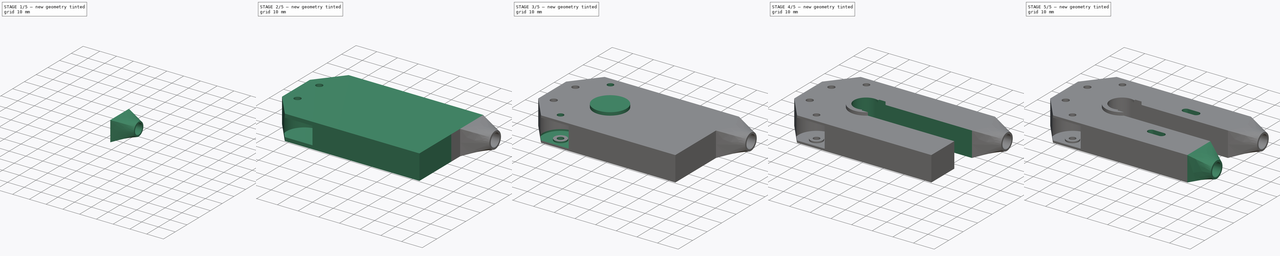
[diagram: build sequence overview — one tinted view per stage of 5, left to right]
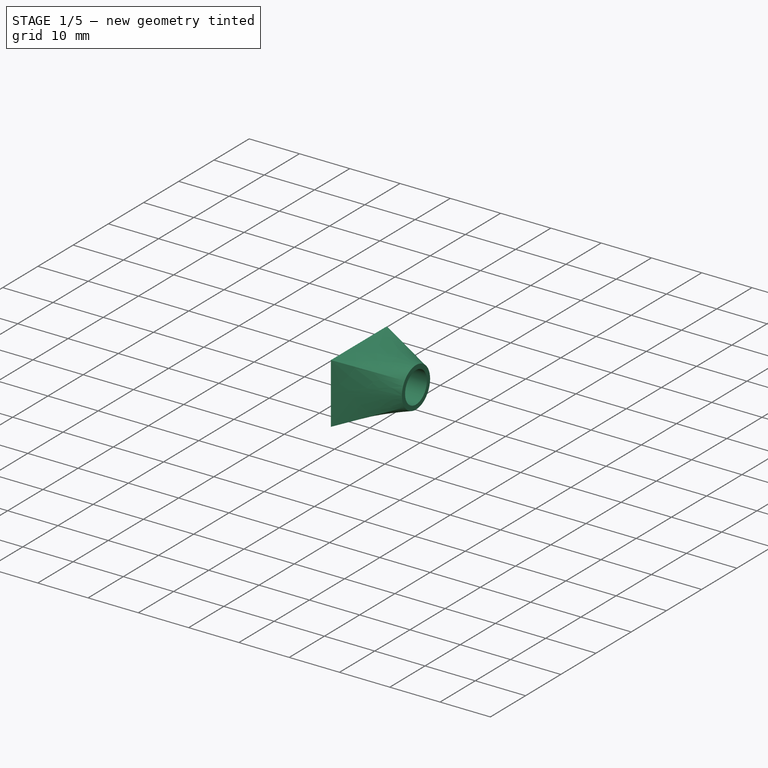
[diagram: stage 1 of 5 — iso view after this stage's code; geometry added in this stage tinted green]
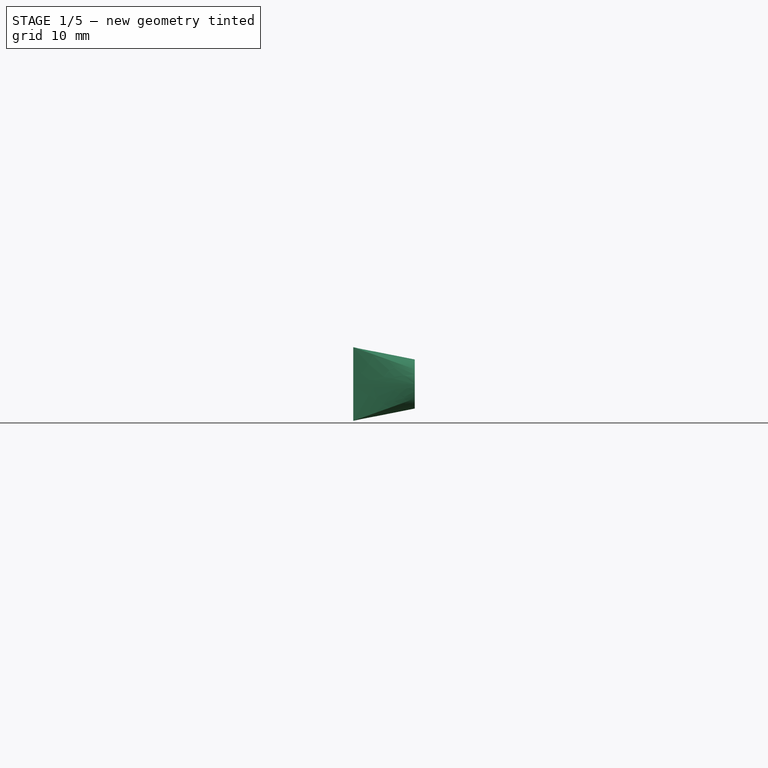
[diagram: stage 1 of 5 — front view after this stage's code; geometry added in this stage tinted green]
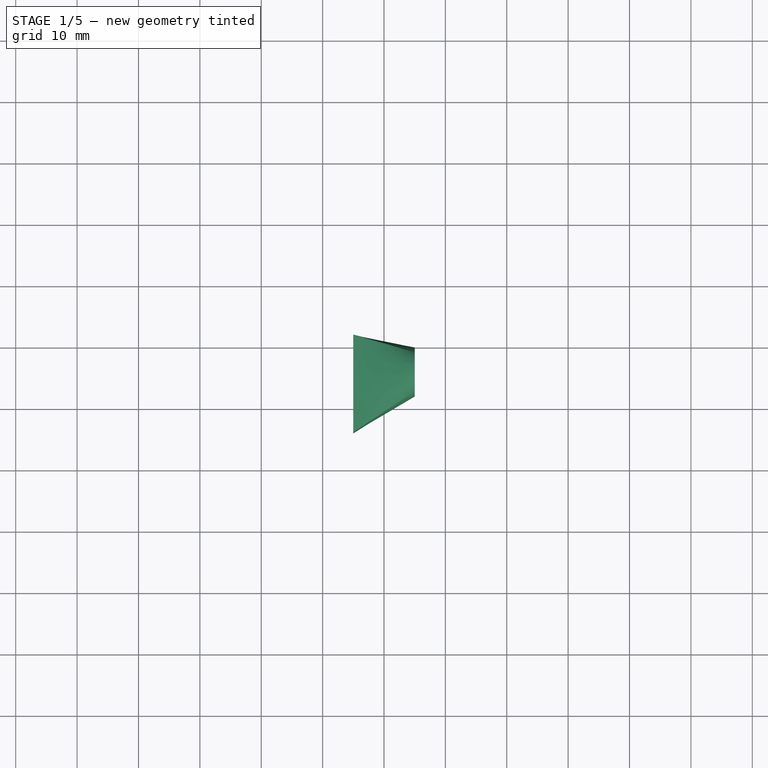
[diagram: stage 1 of 5 — top view after this stage's code; geometry added in this stage tinted green]
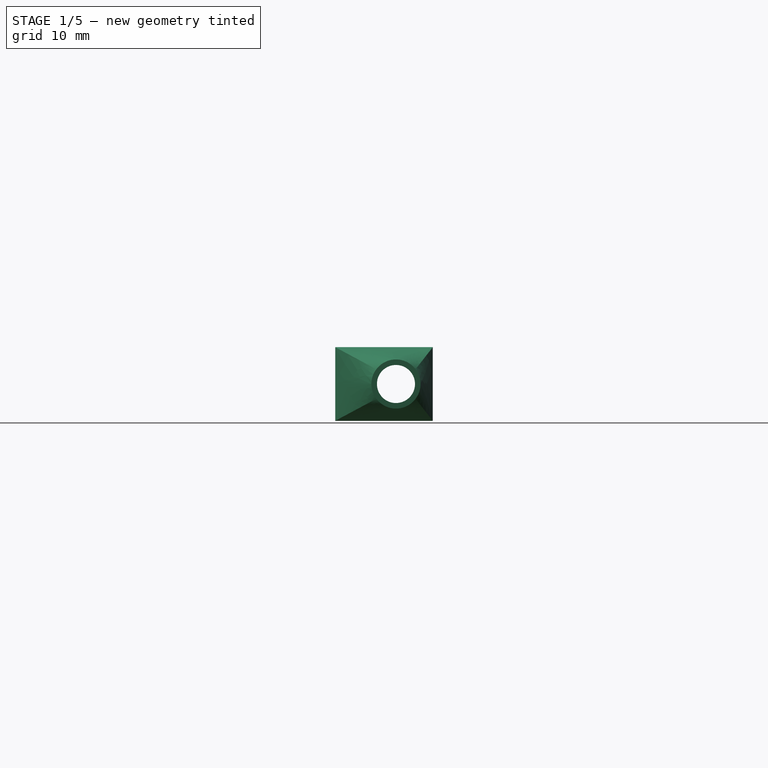
[diagram: stage 1 of 5 — right view after this stage's code; geometry added in this stage tinted green]
FCSTD DOCUMENT  (FreeCAD 0.18R14090 (Git))
Label: RightXEnd
License: All rights reserved
LicenseURL: http://en.wikipedia.org/wiki/All_rights_reserved
objects: Sketcher::SketchObject×15, PartDesign::Pocket×11, PartDesign::Body×3, PartDesign::Pad×2, PartDesign::Plane×2, PartDesign::FeatureBase×2, PartDesign::AdditiveLoft×1, Part::Mirroring×1, App::Part×1, Part::MultiFuse×1, Part::FeaturePython×1
note: 53 computed .brp shape members not serialized (recipe doc carries the construction recipe); baked Part::Feature solids carry a one-line shape summary decoded from their .brp

FEATURE [Sketcher::SketchObject] Sketch004  label="BearingClipBaseSketch"
  MapMode = 5
  Support = -> [XY_Plane]
  sketch-geometry (1):
    g0: Circle CenterX=28 CenterY=0 CenterZ=0 NormalX=0 NormalY=0 NormalZ=1 AngleXU=0 Radius=8
  constraints (3):
    c: PointOnObject(g0,g-1)
    c: Distance(g-1,g0) = 28
    c: Radius(g0) = 8
FEATURE [Sketcher::SketchObject] Sketch005  label="BearingClipLedgeSketch"
  ExternalGeometry = -> [Sketch004]
  MapMode = 5
  Support = -> [XY_Plane]
  sketch-geometry (1):
    g0: Circle CenterX=28 CenterY=0 CenterZ=0 NormalX=0 NormalY=0 NormalZ=1 AngleXU=0 Radius=5.8
  constraints (2):
    c: Coincident(g0,g-3)
    c: Radius(g0) = 5.8
FEATURE [Sketcher::SketchObject] Sketch006  label="BearingClipWallSketch"
  ExternalGeometry = -> [Sketch004]
  MapMode = 5
  Support = -> [XY_Plane]
  sketch-geometry (1):
    g0: Circle CenterX=28 CenterY=0 CenterZ=0 NormalX=0 NormalY=0 NormalZ=1 AngleXU=0 Radius=6.1
  constraints (2):
    c: Coincident(g0,g-3)
    c: Radius(g0) = 6.1
FEATURE [Sketcher::SketchObject] Sketch007  label="BearingClipCut1Sketch"
  ExternalGeometry = -> [Sketch006]
  MapMode = 5
  Support = -> [XY_Plane]
  sketch-geometry (10):
    g0: LineSegment StartX=28 StartY=0 StartZ=0 EndX=30.0863 EndY=5.73212 EndZ=0
    g1: LineSegment StartX=28 StartY=0 StartZ=0 EndX=30.0863 EndY=-5.73212 EndZ=0
    g2: LineSegment StartX=30.2202 StartY=-6.1 StartZ=0 EndX=130.22 EndY=-6.1 EndZ=0
    g3: LineSegment StartX=30.2202 StartY=6.1 StartZ=0 EndX=130.22 EndY=6.1 EndZ=0
    g4: LineSegment StartX=130.22 StartY=6.1 StartZ=0 EndX=130.22 EndY=-6.1 EndZ=0
    g5: LineSegment [constr] StartX=28 StartY=6.1 StartZ=0 EndX=28 EndY=-6.1 EndZ=0
    g6: LineSegment [constr] StartX=28 StartY=6.1 StartZ=0 EndX=30.2202 EndY=6.1 EndZ=0
    g7: LineSegment [constr] StartX=28 StartY=-6.1 StartZ=0 EndX=30.2202 EndY=-6.1 EndZ=0
    g8: LineSegment StartX=30.0863 StartY=5.73212 StartZ=0 EndX=30.2202 EndY=6.1 EndZ=0
    g9: LineSegment StartX=30.0863 StartY=-5.73212 StartZ=0 EndX=30.2202 EndY=-6.1 EndZ=0
  constraints (26):
    c: Coincident(g1,g0)
    c: Horizontal(g2)
    c: Horizontal(g3)
    c: Coincident(g4,g3)
    c: Coincident(g4,g2)
    c: Vertical(g4)
    c: Distance(g3) = 100
    c: PointOnObject(g0,g-3)
    c: Coincident(g0,g-3)
    c: Symmetric(g1,g0,g-1)
    c: Angle(g0,g-1) = 1.91986
    c: PointOnObject(g5,g-3)
    c: PointOnObject(g5,g-3)
    c: Vertical(g5)
    c: PointOnObject(g0,g5)
    c: Coincident(g6,g5)
    c: Horizontal(g6)
    c: Coincident(g7,g5)
    c: Symmetric(g7,g6,g-1)
    c: Coincident(g8,g0)
    c: Coincident(g8,g6)
    c: Coincident(g9,g1)
    c: Coincident(g9,g7)
    c: Parallel(g8,g0)
    c: Coincident(g3,g8)
    c: Coincident(g2,g9)
FEATURE [Sketcher::SketchObject] Sketch008  label="BearingClipCut2Sketch"
  ExternalGeometry = -> [Sketch006]
  MapMode = 5
  Support = -> [XY_Plane]
  sketch-geometry (4):
    g0: LineSegment StartX=28 StartY=6.1 StartZ=0 EndX=28 EndY=-6.1 EndZ=0
    g1: LineSegment StartX=28 StartY=6.1 StartZ=0 EndX=32 EndY=6.1 EndZ=0
    g2: LineSegment StartX=32 StartY=6.1 StartZ=0 EndX=32 EndY=-6.1 EndZ=0
    g3: LineSegment StartX=32 StartY=-6.1 StartZ=0 EndX=28 EndY=-6.1 EndZ=0
  constraints (12):
    c: PointOnObject(g0,g-3)
    c: PointOnObject(g0,g-3)
    c: Vertical(g0)
    c: PointOnObject(g-3,g0)
    c: Coincident(g1,g0)
    c: Horizontal(g1)
    c: Vertical(g2)
    c: Coincident(g3,g2)
    c: Coincident(g3,g0)
    c: Horizontal(g3)
    c: Distance(g1) = 4
    c: Coincident(g2,g1)
FEATURE [Sketcher::SketchObject] Sketch012  label="FeedingShaftClipScrewsSketch"
  ExternalGeometry = -> [Sketch004]
  MapMode = 5
  Support = -> [XY_Plane]
  sketch-geometry (13):
    g0: LineSegment [constr] StartX=28 StartY=8 StartZ=0 EndX=28 EndY=-8 EndZ=0
    g1: LineSegment [constr] StartX=28 StartY=12 StartZ=0 EndX=53 EndY=12 EndZ=0
    g2: LineSegment [constr] StartX=28 StartY=12 StartZ=0 EndX=28 EndY=8 EndZ=0
    g3: ArcOfCircle CenterX=50.5 CenterY=12 CenterZ=0 NormalX=0 NormalY=0 NormalZ=1 AngleXU=0 Radius=1.65 StartAngle=1.5708 EndAngle=4.71239
    g4: ArcOfCircle CenterX=55.5 CenterY=12 CenterZ=0 NormalX=0 NormalY=0 NormalZ=1 AngleXU=0 Radius=1.65 StartAngle=4.71239 EndAngle=7.85398
    g5: LineSegment StartX=50.5 StartY=10.35 StartZ=0 EndX=55.5 EndY=10.35 EndZ=0
    g6: LineSegment StartX=50.5 StartY=13.65 StartZ=0 EndX=55.5 EndY=13.65 EndZ=0
    g7: LineSegment [constr] StartX=50.5 StartY=12 StartZ=0 EndX=53 EndY=12 EndZ=0
    g8: LineSegment [constr] StartX=53 StartY=12 StartZ=0 EndX=55.5 EndY=12 EndZ=0
    g9: ArcOfCircle CenterX=50.5 CenterY=-12 CenterZ=0 NormalX=0 NormalY=0 NormalZ=1 AngleXU=0 Radius=1.65 StartAngle=1.5708 EndAngle=4.71239
    g10: ArcOfCircle CenterX=55.5 CenterY=-12 CenterZ=0 NormalX=0 NormalY=0 NormalZ=1 AngleXU=0 Radius=1.65 StartAngle=4.71239 EndAngle=7.85398
    g11: LineSegment StartX=50.5 StartY=-13.65 StartZ=0 EndX=55.5 EndY=-13.65 EndZ=0
    g12: LineSegment StartX=50.5 StartY=-10.35 StartZ=0 EndX=55.5 EndY=-10.35 EndZ=0
  constraints (32):
    c: PointOnObject(g0,g-3)
    c: Vertical(g0)
    c: PointOnObject(g-3,g0)
    c: Horizontal(g1)
    c: Distance(g1) = 25
    c: PointOnObject(g0,g-3)
    c: Coincident(g2,g1)
    c: Coincident(g2,g0)
    c: Vertical(g2)
    c: Tangent(g3,g6) = 1.5708
    c: Tangent(g3,g5) = -1.5708
    c: Tangent(g5,g4) = -1.5708
    c: Tangent(g6,g4) = 1.5708
    c: Horizontal(g5)
    c: Equal(g3,g4)
    c: PointOnObject(g3,g1)
    c: Coincident(g7,g3)
    c: Coincident(g7,g1)
    c: Coincident(g8,g1)
    c: Coincident(g8,g4)
    c: Equal(g7,g8)
    c: Distance(g6) = 5
    c: Radius(g4) = 1.65
    c: Tangent(g9,g12) = 1.5708
    c: Tangent(g9,g11) = -1.5708
    c: Tangent(g11,g10) = -1.5708
    c: Tangent(g12,g10) = 1.5708
    c: Horizontal(g11)
    c: Symmetric(g9,g3,g-1)
    c: Symmetric(g4,g10,g-1)
    c: Equal(g10,g4)
    c: Distance(g1,g-3) = 12
FEATURE [Sketcher::SketchObject] Sketch013  label="ClipBaseSketch"
  MapMode = 5
  Placement = pos=(0,0,0) rot=(0.57735,0.57735,0.57735;2.0944rad)
  Support = -> [YZ_Plane001]
  sketch-geometry (4):
    g0: LineSegment StartX=0 StartY=0 StartZ=0 EndX=15.9 EndY=0 EndZ=0
    g1: LineSegment StartX=15.9 StartY=0 StartZ=0 EndX=15.9 EndY=12 EndZ=0
    g2: LineSegment StartX=15.9 StartY=12 StartZ=0 EndX=0 EndY=12 EndZ=0
    g3: LineSegment StartX=0 StartY=12 StartZ=0 EndX=0 EndY=0 EndZ=0
  constraints (11):
    c: Coincident(g0,g1)
    c: Coincident(g1,g2)
    c: Coincident(g2,g3)
    c: Coincident(g3,g0)
    c: Horizontal(g0)
    c: Horizontal(g2)
    c: Vertical(g1)
    c: Vertical(g3)
    c: Coincident(g0,g-1)
    c: Distance(g3) = 12
    c: Distance(g2) = 15.9
FEATURE [PartDesign::Plane] DatumPlane  label="ClipTopPlane"
  AttachmentOffset = pos=(0,0,10) rot=(0,0,1;0rad)
  MapMode = 2
  Placement = pos=(10,-1e-12,1e-12) rot=(0.57735,0.57735,0.57735;2.0944rad)
  Support = -> [YZ_Plane001]
FEATURE [Sketcher::SketchObject] Sketch014  label="ClipTopSketch"
  ExternalGeometry = -> [Sketch013]
  MapMode = 5
  Placement = pos=(10,-1e-12,1e-12) rot=(0.57735,0.57735,0.57735;2.0944rad)
  Support = -> [DatumPlane]
  sketch-geometry (4):
    g0: Circle CenterX=6 CenterY=6 CenterZ=0 NormalX=0 NormalY=0 NormalZ=1 AngleXU=0 Radius=4
    g1: LineSegment [constr] StartX=6 StartY=6 StartZ=0 EndX=6 EndY=12 EndZ=0
    g2: LineSegment [constr] StartX=6 StartY=6 StartZ=0 EndX=0 EndY=6 EndZ=0
    g3: LineSegment [constr] StartX=6 StartY=6 StartZ=0 EndX=6 EndY=0 EndZ=0
  constraints (12):
    c: Radius(g0) = 4
    c: Coincident(g1,g0)
    c: Vertical(g1)
    c: Coincident(g2,g0)
    c: Horizontal(g2)
    c: PointOnObject(g2,g-2)
    c: PointOnObject(g1,g-3)
    c: Coincident(g3,g0)
    c: PointOnObject(g3,g-1)
    c: Vertical(g3)
    c: Equal(g1,g3)
    c: Distance(g2) = 6
FEATURE [PartDesign::AdditiveLoft] AdditiveLoft
  Closed = false
  Placement = pos=(0,0,0) rot=(0.57735,0.57735,0.57735;2.0944rad)
  Profile = -> Sketch013
  Ruled = false
  Sections = -> [Sketch014]
FEATURE [Sketcher::SketchObject] Sketch015  label="ClipRodSketch"
  ExternalGeometry = -> [Sketch014]
  MapMode = 5
  Placement = pos=(10,-1e-12,1e-12) rot=(0.57735,0.57735,0.57735;2.0944rad)
  Support = -> [DatumPlane]
  sketch-geometry (1):
    g0: Circle CenterX=6 CenterY=6 CenterZ=0 NormalX=0 NormalY=0 NormalZ=1 AngleXU=0 Radius=3.1
  constraints (2):
    c: Coincident(g0,g-3)
    c: Radius(g0) = 3.1
FEATURE [PartDesign::Pocket] Pocket010  label="ClipRodPocket"
  BaseFeature = -> AdditiveLoft
  Length = 5
  Length2 = 100
  Placement = pos=(0,0,0) rot=(0.57735,0.57735,0.57735;2.0944rad)
  Profile = -> Sketch015
  Type = 1
FEATURE [PartDesign::Body] Body  label="RightXEndBase"
  Group = -> [Sketch,Pad,Sketch016,Pocket,Sketch009,Pocket006,Sketch011,Pocket008,Sketch010,Pocket007,Sketch004,Pad002,Sketch005,Pocket002,Sketch006,Pocket003,Sketch007,Pocket004,Sketch008,Pocket005,Sketch012,Pocket009,DatumPlane001,Sketch017,Pocket011]
  Origin = -> Origin
  Tip = -> Pocket011
FEATURE [PartDesign::FeatureBase] Clone  label="Clip_Rod6mm_Clone"
  BaseFeature = -> Body001
  Placement = pos=(75,-22,-6) rot=(0,0,1;0rad)
FEATURE [Part::Mirroring] Part__Mirroring  label="Clip_Rod6mm_Mirror"
  Base = (0,0,0)
  Normal = (0,1,0)
  Source = -> Clone
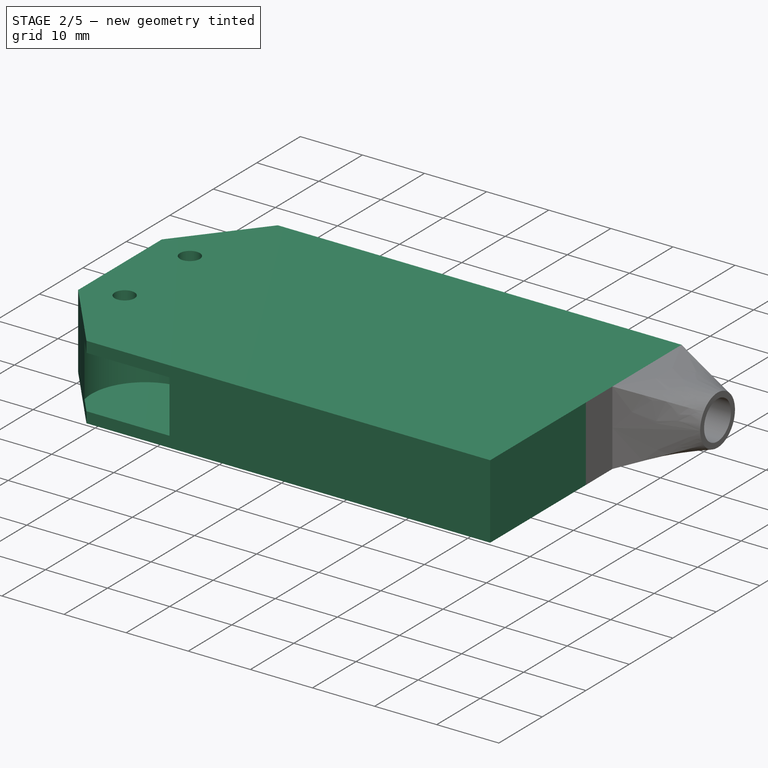
[diagram: stage 2 of 5 — iso view after this stage's code; geometry added in this stage tinted green]
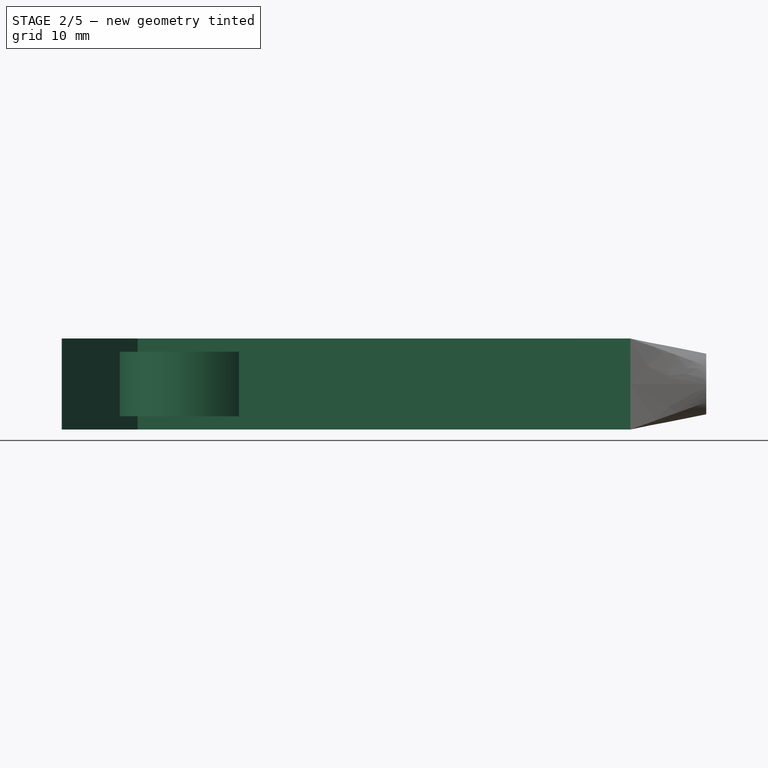
[diagram: stage 2 of 5 — front view after this stage's code; geometry added in this stage tinted green]
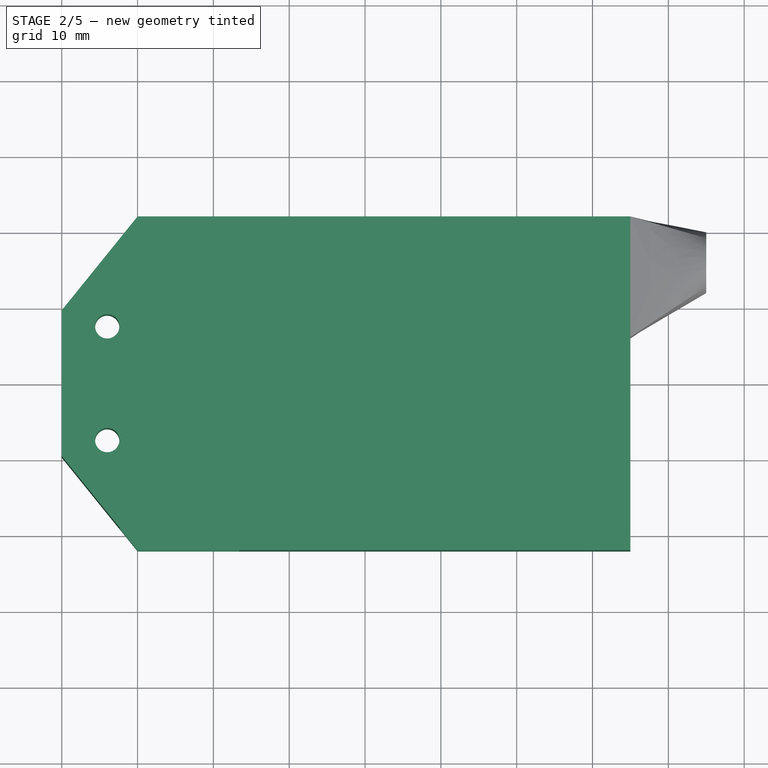
[diagram: stage 2 of 5 — top view after this stage's code; geometry added in this stage tinted green]
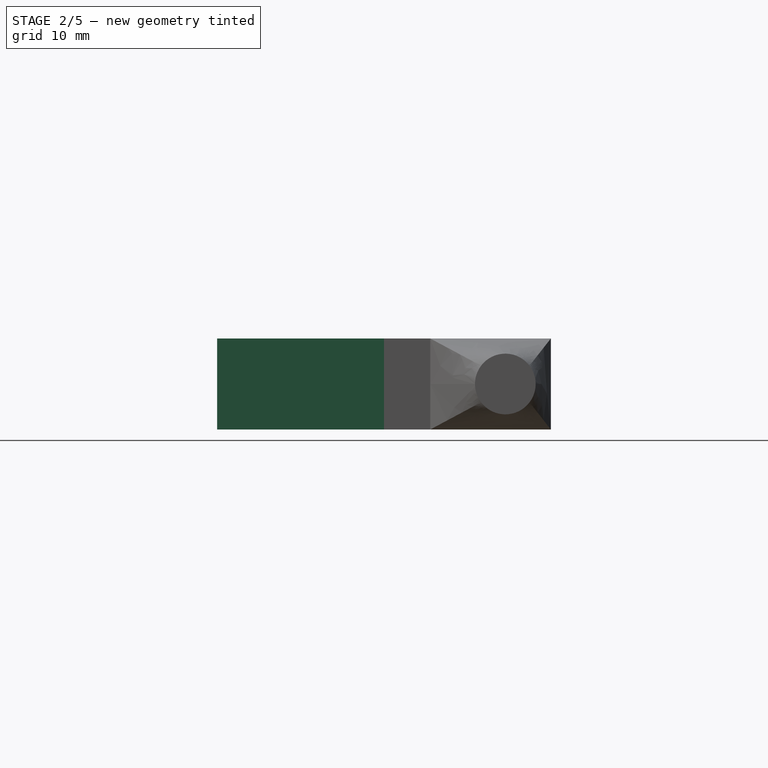
[diagram: stage 2 of 5 — right view after this stage's code; geometry added in this stage tinted green]
FEATURE [Sketcher::SketchObject] Sketch  label="BaseSketch"
  MapMode = 5
  Placement = pos=(0,0,0) rot=(0.57735,0.57735,0.57735;2.0944rad)
  Support = -> [YZ_Plane]
  sketch-geometry (8):
    g0: LineSegment StartX=0 StartY=-6 StartZ=0 EndX=22 EndY=-6 EndZ=0
    g1: LineSegment StartX=22 StartY=-6 StartZ=0 EndX=22 EndY=0 EndZ=0
    g2: LineSegment StartX=22 StartY=0 StartZ=0 EndX=22 EndY=6 EndZ=0
    g3: LineSegment StartX=22 StartY=6 StartZ=0 EndX=0 EndY=6 EndZ=0
    g4: LineSegment StartX=0 StartY=6 StartZ=0 EndX=-22 EndY=6 EndZ=0
    g5: LineSegment StartX=-22 StartY=6 StartZ=0 EndX=-22 EndY=0 EndZ=0
    g6: LineSegment StartX=-22 StartY=0 StartZ=0 EndX=-22 EndY=-6 EndZ=0
    g7: LineSegment StartX=-22 StartY=-6 StartZ=0 EndX=0 EndY=-6 EndZ=0
  constraints (24):
    c: PointOnObject(g3,g-2)
    c: PointOnObject(g0,g-2)
    c: Horizontal(g0)
    c: Coincident(g1,g0)
    c: PointOnObject(g1,g-1)
    c: Vertical(g1)
    c: Coincident(g2,g1)
    c: Vertical(g2)
    c: Coincident(g3,g2)
    c: Horizontal(g3)
    c: Horizontal(g4)
    c: Coincident(g5,g4)
    c: PointOnObject(g5,g-1)
    c: Vertical(g5)
    c: Coincident(g6,g5)
    c: Vertical(g6)
    c: Coincident(g7,g6)
    c: Horizontal(g7)
    c: Equal(g5,g6)
    c: Equal(g4,g3)
    c: Distance(g4,g6) = 12
    c: Distance(g4,g2) = 44
    c: Coincident(g0,g7)
    c: Coincident(g4,g3)
FEATURE [PartDesign::Pad] Pad  label="BasePad"
  Length = 75
  Length2 = 100
  Placement = pos=(0,0,0) rot=(0.57735,0.57735,0.57735;2.0944rad)
  Profile = -> Sketch
  Type = 0
FEATURE [PartDesign::Body] Body001  label="Clip_Rod6mm_Left"
  Group = -> [Sketch013,DatumPlane,Sketch014,AdditiveLoft,Sketch015,Pocket010]
  Origin = -> Origin001
  Placement = pos=(75,-22,-6) rot=(0,0,1;0rad)
  Tip = -> Pocket010
FEATURE [Sketcher::SketchObject] Sketch016  label="TensionerScrewsSketch"
  ExternalGeometry = -> [Sketch]
  MapMode = 5
  Support = -> [XY_Plane]
  sketch-geometry (10):
    g0: Circle CenterX=6 CenterY=7.5 CenterZ=0 NormalX=0 NormalY=0 NormalZ=1 AngleXU=0 Radius=1.6
    g1: Circle CenterX=6 CenterY=-7.5 CenterZ=0 NormalX=0 NormalY=0 NormalZ=1 AngleXU=0 Radius=1.6
    g2: LineSegment StartX=-2e-12 StartY=-22 StartZ=0 EndX=0 EndY=-9.62066 EndZ=0
    g3: LineSegment StartX=0 StartY=-9.62066 StartZ=0 EndX=10 EndY=-22 EndZ=0
    g4: LineSegment StartX=10 StartY=-22 StartZ=0 EndX=-2e-12 EndY=-22 EndZ=0
    g5: LineSegment StartX=0 StartY=9.62066 StartZ=0 EndX=-2e-12 EndY=22 EndZ=0
    g6: LineSegment StartX=-2e-12 StartY=22 StartZ=0 EndX=10 EndY=22 EndZ=0
    g7: LineSegment StartX=10 StartY=22 StartZ=0 EndX=0 EndY=9.62066 EndZ=0
    g8: LineSegment [constr] StartX=1.33259 StartY=-11.2703 StartZ=0 EndX=6 EndY=-7.5 EndZ=0
    g9: LineSegment [constr] StartX=6 StartY=-7.5 StartZ=0 EndX=0 EndY=-7.5 EndZ=0
  constraints (25):
    c: Symmetric(g0,g1,g-1)
    c: Equal(g0,g1)
    c: Radius(g0) = 1.6
    c: Coincident(g3,g2)
    c: Coincident(g4,g3)
    c: Coincident(g4,g2)
    c: Horizontal(g4)
    c: Coincident(g6,g5)
    c: Coincident(g7,g6)
    c: Coincident(g7,g5)
    c: Symmetric(g2,g5,g-1)
    c: Symmetric(g2,g5,g-1)
    c: Symmetric(g6,g3,g-1)
    c: PointOnObject(g8,g3)
    c: Coincident(g8,g1)
    c: Perpendicular(g3,g8)
    c: Coincident(g2,g-3)
    c: PointOnObject(g2,g-2)
    c: Distance(g1,g0) = 15
    c: Coincident(g9,g1)
    c: PointOnObject(g9,g-2)
    c: Horizontal(g9)
    c: Equal(g9,g8)
    c: Distance(g9) = 6
    c: Distance(g4) = 10
FEATURE [Sketcher::SketchObject] Sketch009  label="BeltBearingsSketch"
  ExternalGeometry = -> [Sketch,Sketch016]
  MapMode = 5
  Support = -> [XY_Plane]
  sketch-geometry (8):
    g0: LineSegment [constr] StartX=-3e-12 StartY=-22 StartZ=0 EndX=10 EndY=-22 EndZ=0
    g1: Circle [constr] CenterX=16.1237 CenterY=-17.25 CenterZ=0 NormalX=0 NormalY=0 NormalZ=1 AngleXU=0 Radius=7.75
    g2: LineSegment [constr] StartX=10 StartY=-22 StartZ=0 EndX=22.2474 EndY=-22 EndZ=0
    g3: LineSegment [constr] StartX=16.1237 StartY=-17.25 StartZ=0 EndX=16.1237 EndY=-25 EndZ=0
    g4: Circle CenterX=16.1237 CenterY=-17.25 CenterZ=0 NormalX=0 NormalY=0 NormalZ=1 AngleXU=0 Radius=8.67306
    g5: LineSegment [constr] StartX=22.2474 StartY=-22 StartZ=0 EndX=23.3804 EndY=-22 EndZ=0
    g6: LineSegment [constr] StartX=16.1237 StartY=-17.25 StartZ=0 EndX=7.64764 EndY=-19.0879 EndZ=0
    g7: Circle CenterX=16.1237 CenterY=17.25 CenterZ=0 NormalX=0 NormalY=0 NormalZ=1 AngleXU=0 Radius=8.67306
  constraints (22):
    c: Coincident(g0,g-3)
    c: Horizontal(g0)
    c: PointOnObject(g0,g1)
    c: Coincident(g2,g0)
    c: Horizontal(g2)
    c: PointOnObject(g2,g1)
    c: Coincident(g3,g1)
    c: PointOnObject(g3,g1)
    c: Vertical(g3)
    c: Distance(g3,g2) = 3
    c: Radius(g1) = 7.75
    c: Coincident(g4,g1)
    c: Coincident(g5,g2)
    c: Horizontal(g5)
    c: Coincident(g6,g4)
    c: PointOnObject(g6,g4)
    c: PointOnObject(g5,g4)
    c: Distance(g6,g5) = 16
    c: Symmetric(g4,g7,g-1)
    c: Equal(g7,g4)
    c: PointOnObject(g0,g-4)
    c: PointOnObject(g6,g-4)
FEATURE [Sketcher::SketchObject] Sketch010  label="BeltBearingsClampSketch"
  ExternalGeometry = -> [Sketch009]
  MapMode = 5
  Support = -> [XY_Plane]
  sketch-geometry (4):
    g0: Circle CenterX=16.1237 CenterY=-17.25 CenterZ=0 NormalX=0 NormalY=0 NormalZ=1 AngleXU=0 Radius=8.67306
    g1: Circle CenterX=16.1237 CenterY=17.25 CenterZ=0 NormalX=0 NormalY=0 NormalZ=1 AngleXU=0 Radius=8.67306
    g2: Circle CenterX=16.1237 CenterY=-17.25 CenterZ=0 NormalX=0 NormalY=0 NormalZ=1 AngleXU=0 Radius=3
    g3: Circle CenterX=16.1237 CenterY=17.25 CenterZ=0 NormalX=0 NormalY=0 NormalZ=1 AngleXU=0 Radius=3
  constraints (8):
    c: Coincident(g0,g-3)
    c: Symmetric(g0,g1,g-1)
    c: Equal(g0,g1)
    c: Equal(g0,g-3)
    c: Coincident(g2,g0)
    c: Coincident(g3,g1)
    c: Equal(g3,g2)
    c: Radius(g2) = 3
FEATURE [Sketcher::SketchObject] Sketch011  label="BeltBearingsScrewsSketch"
  ExternalGeometry = -> [Sketch009]
  MapMode = 5
  Support = -> [XY_Plane]
  sketch-geometry (2):
    g0: Circle CenterX=16.1237 CenterY=17.25 CenterZ=0 NormalX=0 NormalY=0 NormalZ=1 AngleXU=0 Radius=1.5
    g1: Circle CenterX=16.1237 CenterY=-17.25 CenterZ=0 NormalX=0 NormalY=0 NormalZ=1 AngleXU=0 Radius=1.5
  constraints (4):
    c: Coincident(g1,g-3)
    c: Symmetric(g1,g0,g-1)
    c: Radius(g1) = 1.5
    c: Equal(g1,g0)
FEATURE [PartDesign::Pocket] Pocket  label="TensionerScrewsPocket"
  BaseFeature = -> Pad
  Length = 5
  Length2 = 100
  Midplane = true
  Placement = pos=(0,0,0) rot=(0.57735,0.57735,0.57735;2.0944rad)
  Profile = -> Sketch016
  Type = 1
FEATURE [PartDesign::Pocket] Pocket006  label="BeltBearingsPocket"
  BaseFeature = -> Pocket
  Length = 8.5
  Length2 = 100
  Midplane = true
  Placement = pos=(0,0,0) rot=(0.57735,0.57735,0.57735;2.0944rad)
  Profile = -> Sketch009
  Type = 0
FEATURE [PartDesign::FeatureBase] BaseFeature
  BaseFeature = -> Part__Mirroring
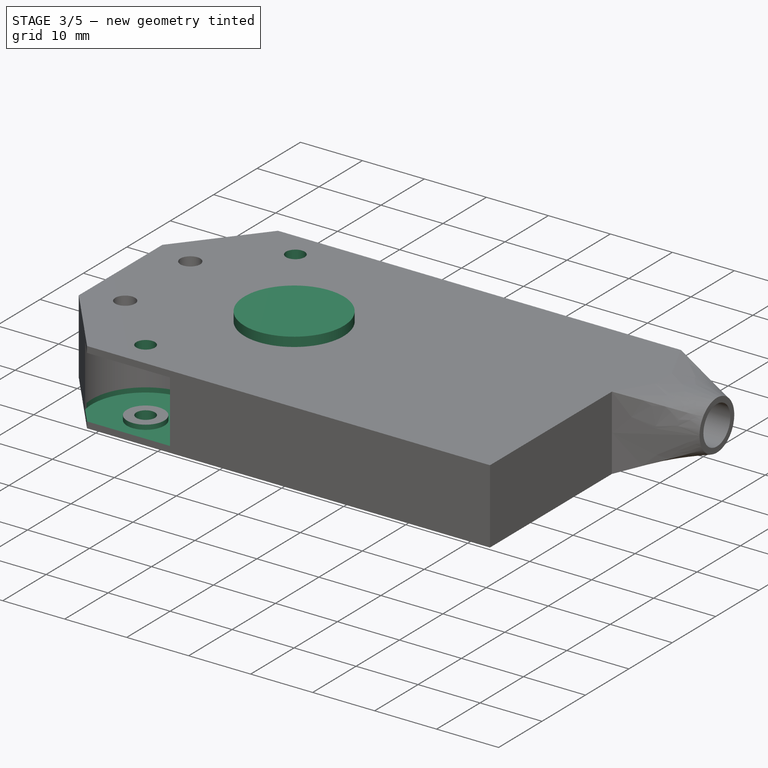
[diagram: stage 3 of 5 — iso view after this stage's code; geometry added in this stage tinted green]
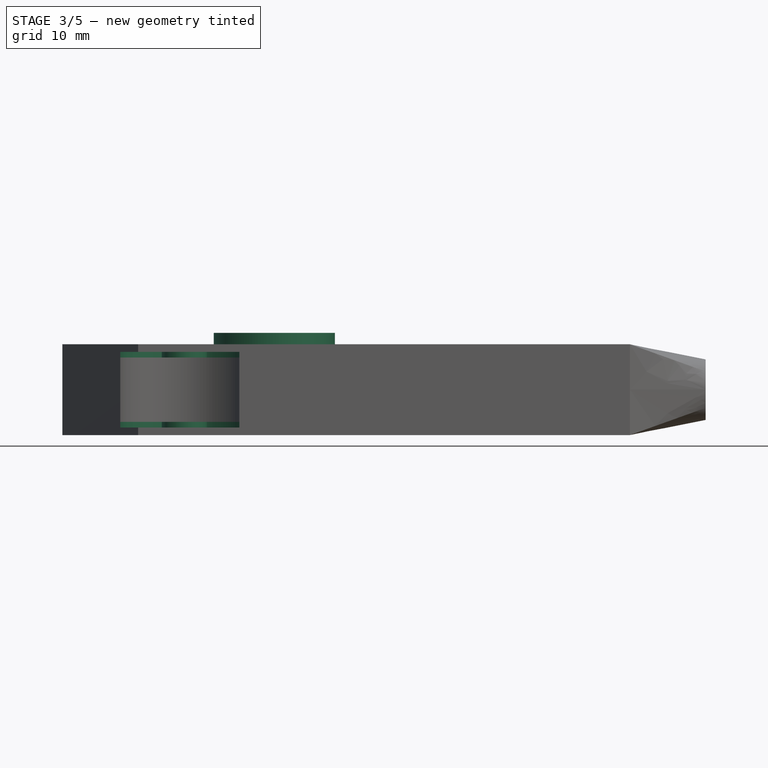
[diagram: stage 3 of 5 — front view after this stage's code; geometry added in this stage tinted green]
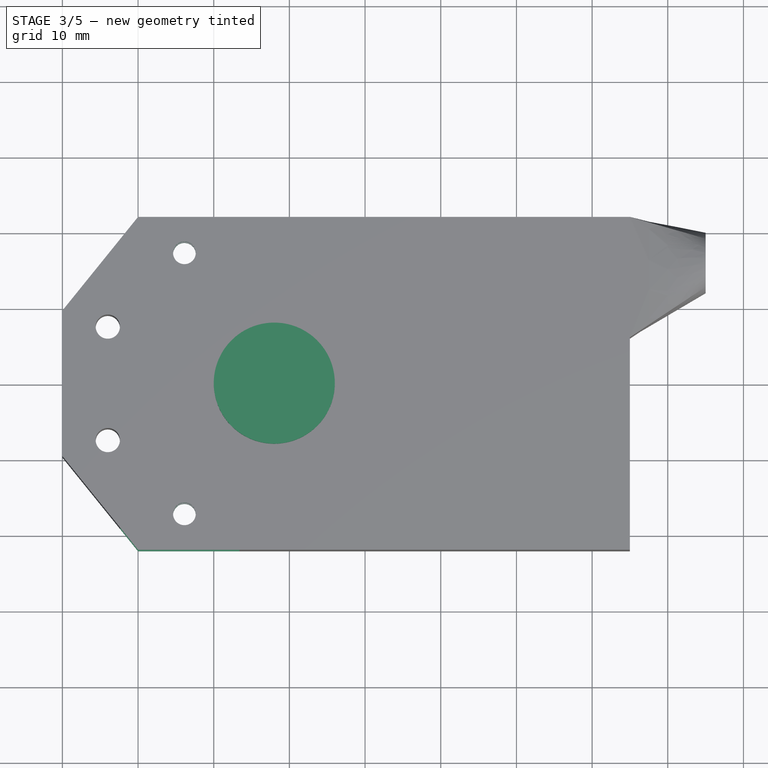
[diagram: stage 3 of 5 — top view after this stage's code; geometry added in this stage tinted green]
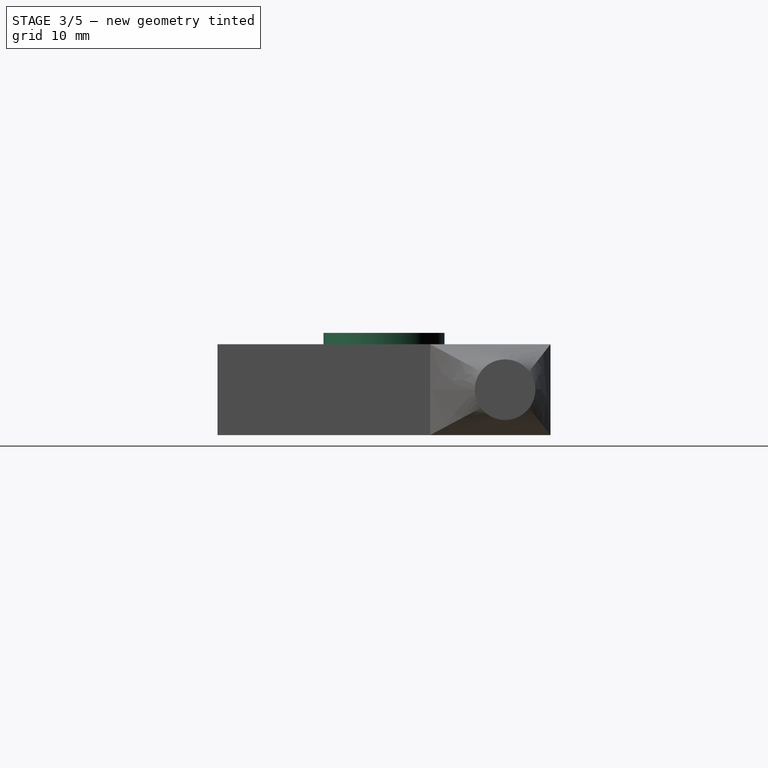
[diagram: stage 3 of 5 — right view after this stage's code; geometry added in this stage tinted green]
FEATURE [PartDesign::Pocket] Pocket008  label="BeltBearingsScrewsPocket"
  BaseFeature = -> Pocket006
  Length = 5
  Length2 = 100
  Midplane = true
  Placement = pos=(0,0,0) rot=(0.57735,0.57735,0.57735;2.0944rad)
  Profile = -> Sketch011
  Type = 1
FEATURE [PartDesign::Pocket] Pocket007  label="BeltBearingsClampPocket"
  BaseFeature = -> Pocket008
  Length = 10
  Length2 = 100
  Midplane = true
  Placement = pos=(0,0,0) rot=(0.57735,0.57735,0.57735;2.0944rad)
  Profile = -> Sketch010
  Type = 0
FEATURE [PartDesign::Pad] Pad002  label="BearingClipBasePad"
  BaseFeature = -> Pocket007
  Length = 7.5
  Length2 = 100
  Placement = pos=(0,0,0) rot=(0.57735,0.57735,0.57735;2.0944rad)
  Profile = -> Sketch004
  Type = 0
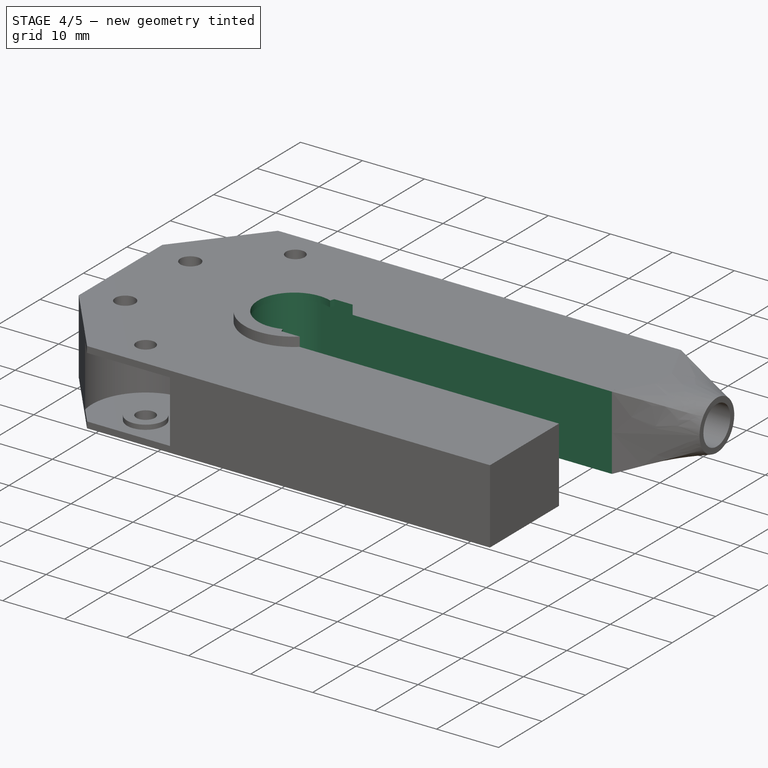
[diagram: stage 4 of 5 — iso view after this stage's code; geometry added in this stage tinted green]
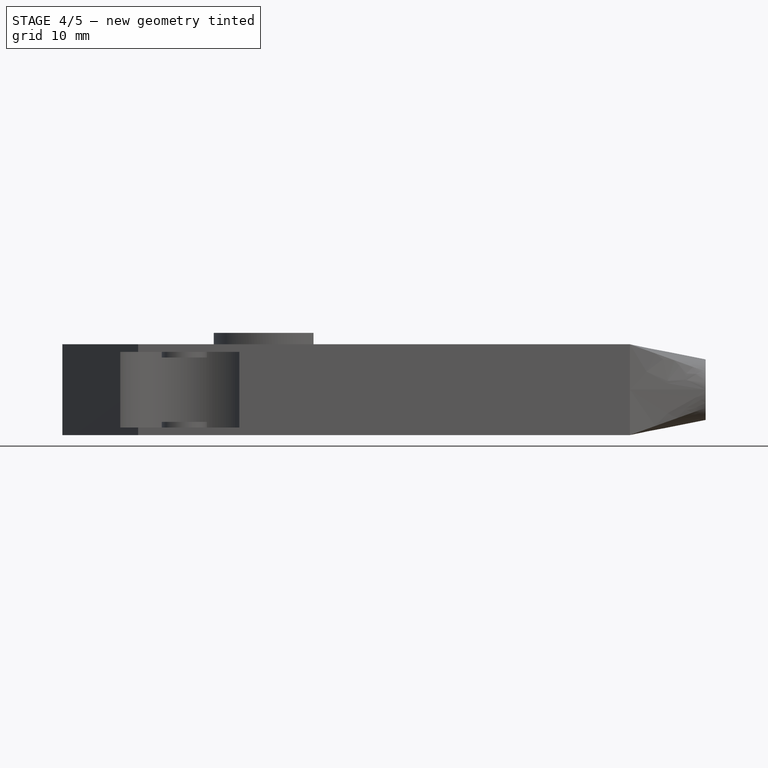
[diagram: stage 4 of 5 — front view after this stage's code; geometry added in this stage tinted green]
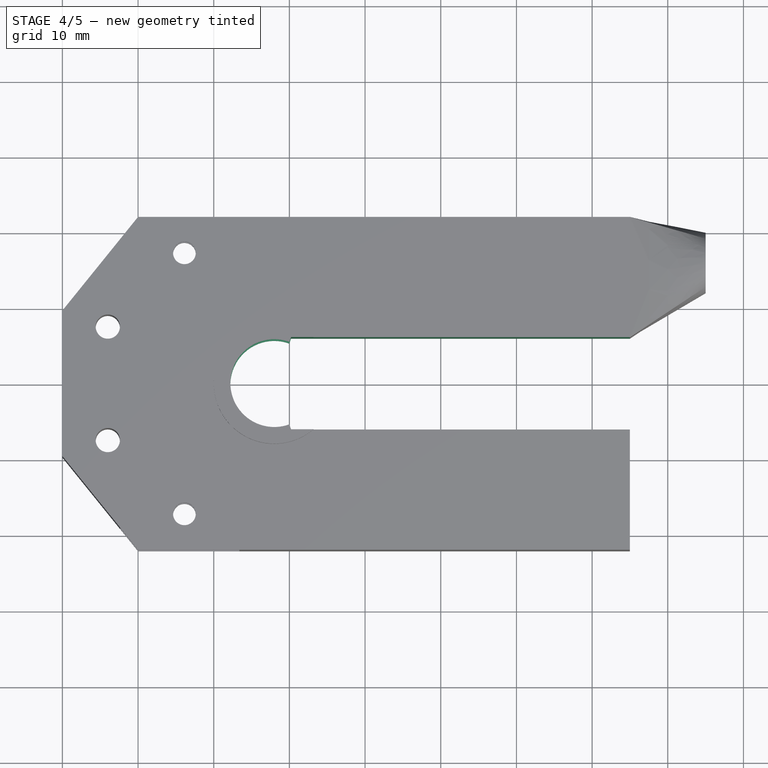
[diagram: stage 4 of 5 — top view after this stage's code; geometry added in this stage tinted green]
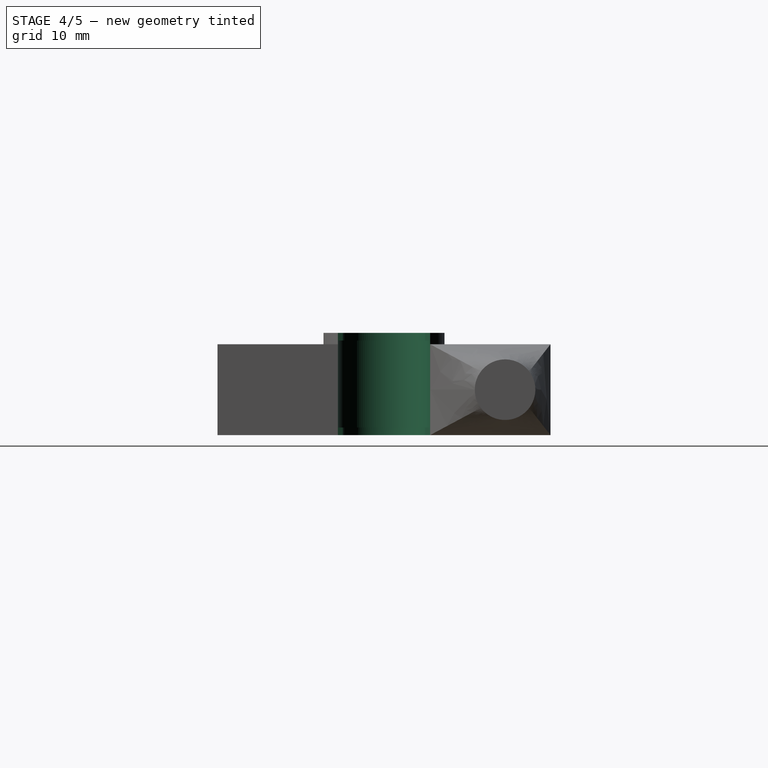
[diagram: stage 4 of 5 — right view after this stage's code; geometry added in this stage tinted green]
FEATURE [PartDesign::Pocket] Pocket002  label="BearingClipLedgePocket"
  BaseFeature = -> Pad002
  Length = 5
  Length2 = 100
  Midplane = true
  Placement = pos=(0,0,0) rot=(0.57735,0.57735,0.57735;2.0944rad)
  Profile = -> Sketch005
  Type = 1
FEATURE [PartDesign::Pocket] Pocket003  label="BearingClipWallPocket"
  BaseFeature = -> Pocket002
  Length = 5
  Length2 = 6.5
  Placement = pos=(0,0,0) rot=(0.57735,0.57735,0.57735;2.0944rad)
  Profile = -> Sketch006
  Type = 4
FEATURE [PartDesign::Pocket] Pocket004  label="BearingClipCut1Pocket"
  BaseFeature = -> Pocket003
  Length = 5
  Length2 = 100
  Midplane = true
  Placement = pos=(0,0,0) rot=(0.57735,0.57735,0.57735;2.0944rad)
  Profile = -> Sketch007
  Type = 1
FEATURE [PartDesign::Pocket] Pocket005  label="BearingClipCut2Pocket"
  BaseFeature = -> Pocket004
  Length = 5
  Length2 = 6.5
  Placement = pos=(0,0,0) rot=(0.57735,0.57735,0.57735;2.0944rad)
  Profile = -> Sketch008
  Type = 4
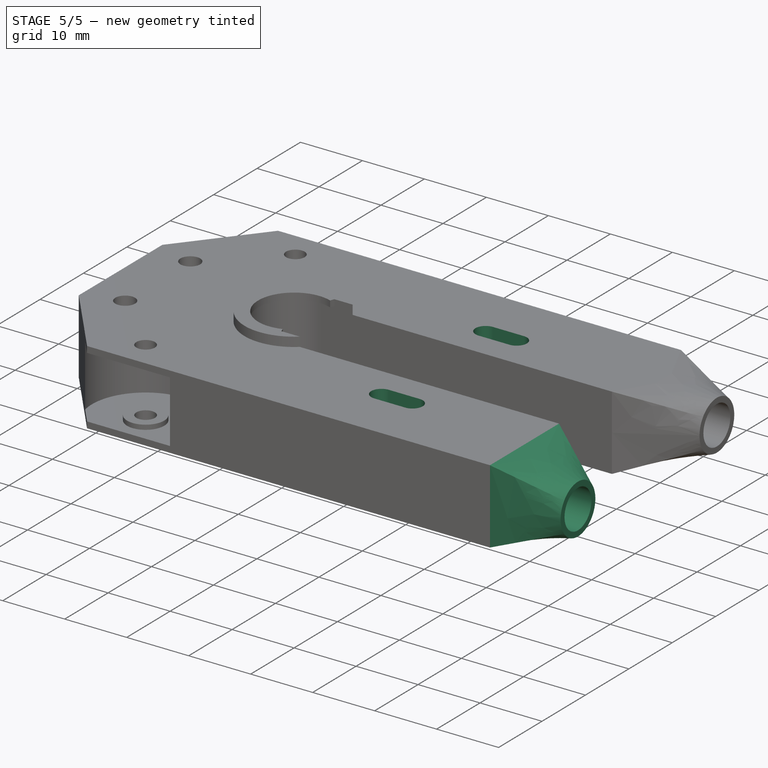
[diagram: stage 5 of 5 — iso view after this stage's code; geometry added in this stage tinted green]
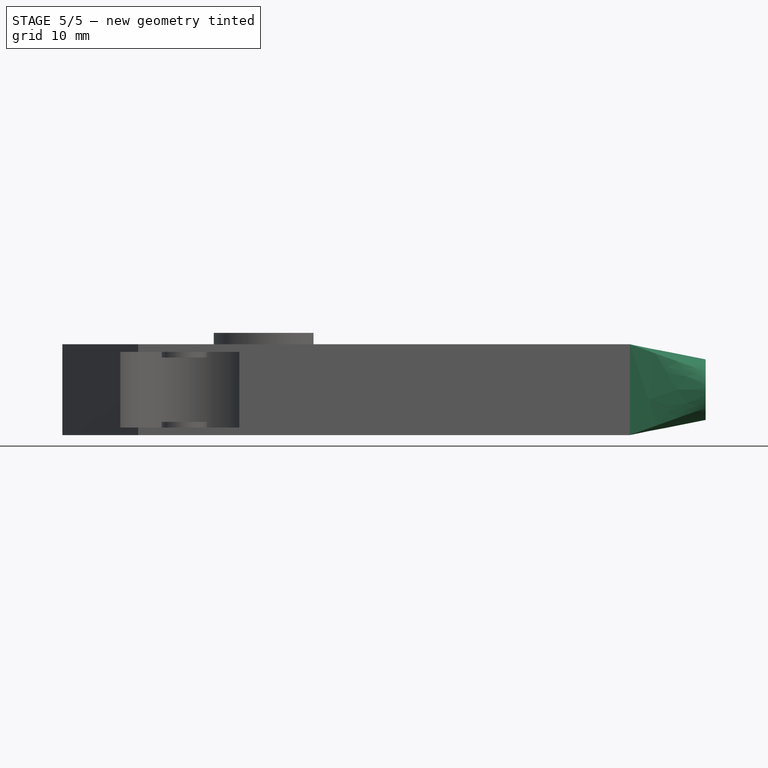
[diagram: stage 5 of 5 — front view after this stage's code; geometry added in this stage tinted green]
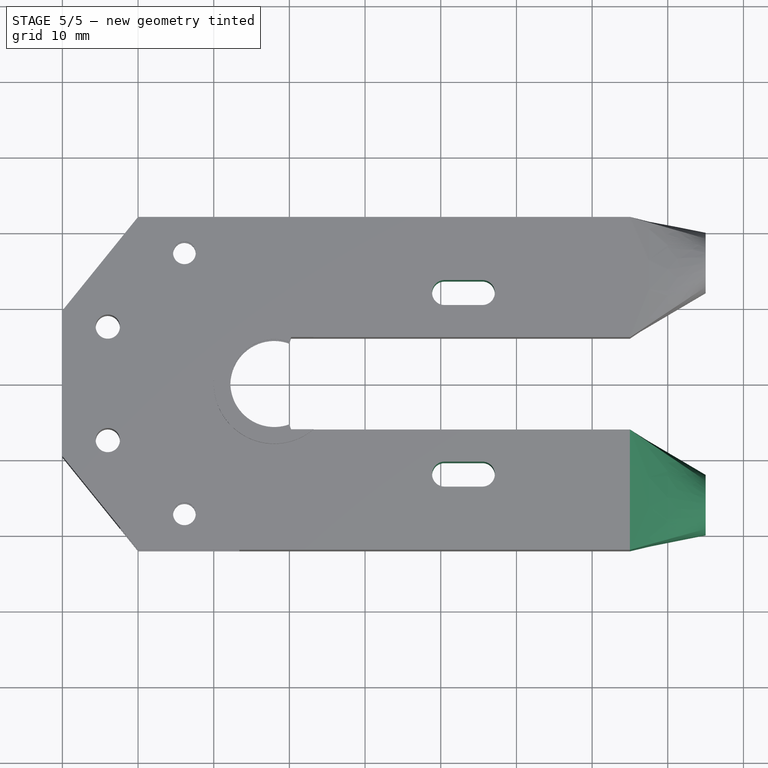
[diagram: stage 5 of 5 — top view after this stage's code; geometry added in this stage tinted green]
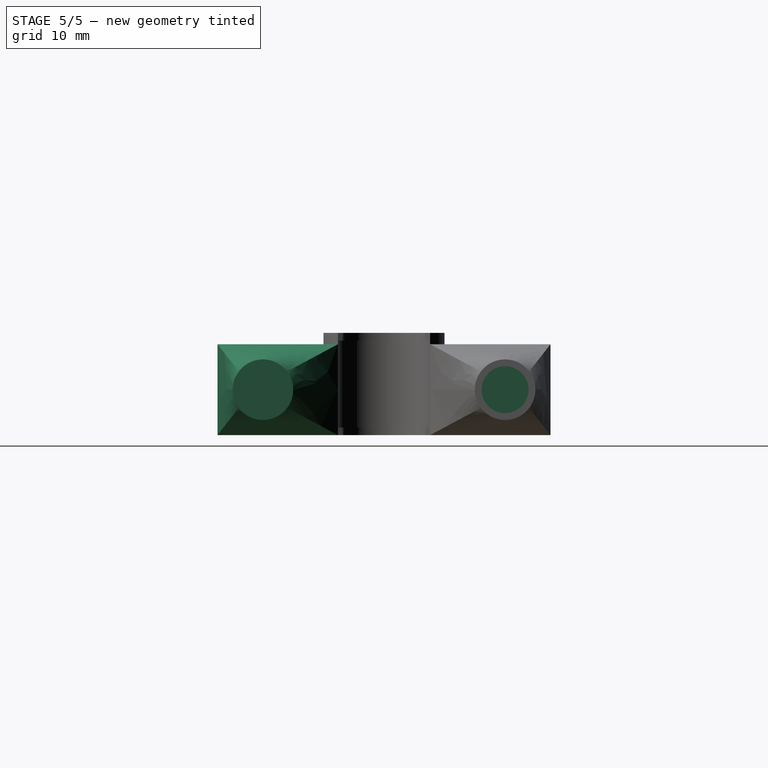
[diagram: stage 5 of 5 — right view after this stage's code; geometry added in this stage tinted green]
FEATURE [PartDesign::Pocket] Pocket009  label="FeedingShaftClipScrewsPocket"
  BaseFeature = -> Pocket005
  Length = 5
  Length2 = 100
  Midplane = true
  Placement = pos=(0,0,0) rot=(0.57735,0.57735,0.57735;2.0944rad)
  Profile = -> Sketch012
  Type = 1
FEATURE [PartDesign::Plane] DatumPlane001  label="RodsSidePlane"
  AttachmentOffset = pos=(0,0,75) rot=(0,0,1;0rad)
  MapMode = 5
  Placement = pos=(75,-8e-12,8e-12) rot=(0.57735,0.57735,0.57735;2.0944rad)
  Support = -> [YZ_Plane]
FEATURE [Sketcher::SketchObject] Sketch017  label="RodsDamperSketch"
  ExternalGeometry = -> [Sketch]
  MapMode = 5
  Placement = pos=(75,-8e-12,8e-12) rot=(0.57735,0.57735,0.57735;2.0944rad)
  Support = -> [DatumPlane001]
  sketch-geometry (2):
    g0: Circle CenterX=-16 CenterY=0 CenterZ=0 NormalX=0 NormalY=0 NormalZ=1 AngleXU=0 Radius=3.1
    g1: Circle CenterX=16 CenterY=0 CenterZ=0 NormalX=0 NormalY=0 NormalZ=1 AngleXU=0 Radius=3.1
  constraints (5):
    c: PointOnObject(g0,g-1)
    c: Equal(g1,g0)
    c: Symmetric(g0,g1,g-2)
    c: Distance(g-3,g0) = 6
    c: Radius(g0) = 3.1
FEATURE [PartDesign::Pocket] Pocket011  label="RodDamperPocket"
  BaseFeature = -> Pocket009
  Length = 3
  Length2 = 100
  Placement = pos=(0,0,0) rot=(0.57735,0.57735,0.57735;2.0944rad)
  Profile = -> Sketch017
  Type = 0
FEATURE [PartDesign::Body] Body002  label="Clip_Rod6mm_Right"
  BaseFeature = -> Part__Mirroring
  Group = -> [BaseFeature]
  Origin = -> Origin004
  Tip = -> BaseFeature
FEATURE [App::Part] Part001  label="RightXEndPart"
  Group = -> [Body001,Body,Body002]
  License = CC BY 3.0
  LicenseURL = http://creativecommons.org/licenses/by/3.0/
  Origin = -> Origin003
FEATURE [Part::MultiFuse] Fusion  label="RightXEndFusion"
  Shapes = -> [Body001,Body,Body002]
FEATURE [Part::FeaturePython] refine  label="RightXEndFusion_Refined"  # WARN: FeaturePython — macro-defined, semantics opaque (R4)
  Base = -> Fusion
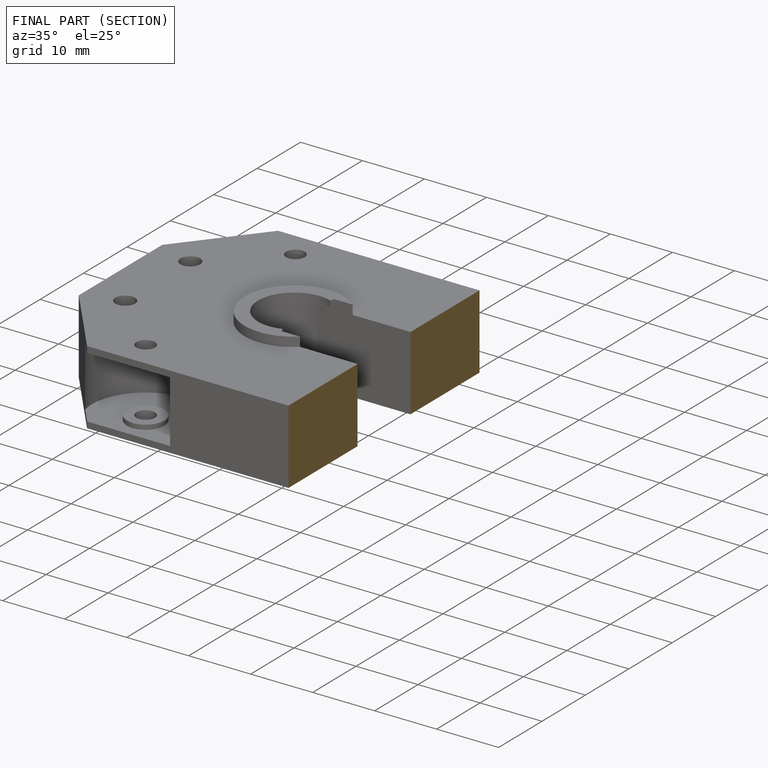
[diagram: finished part — half-section view (interior)]
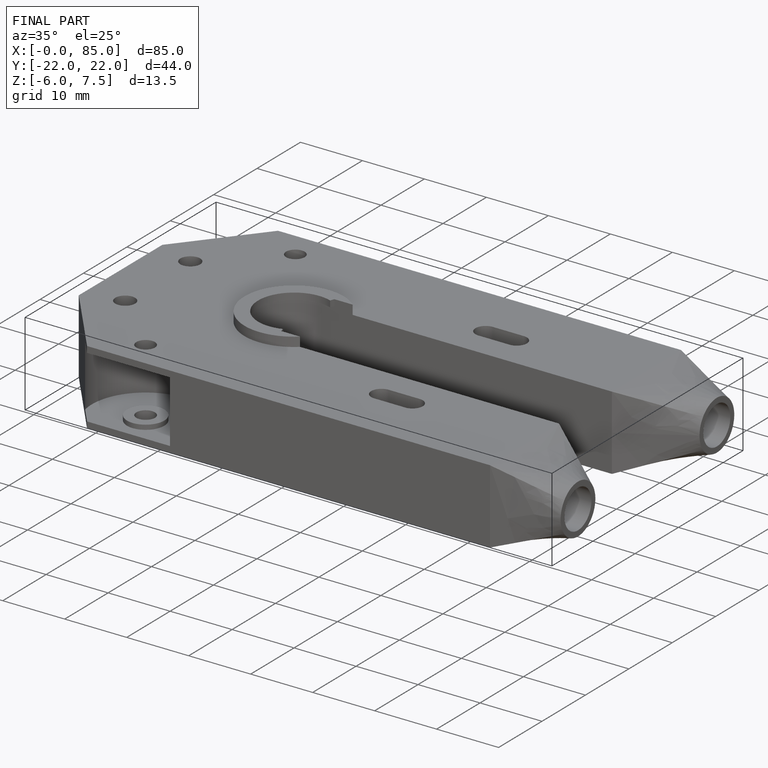
[diagram: finished part — iso view with bounding-box wireframe]
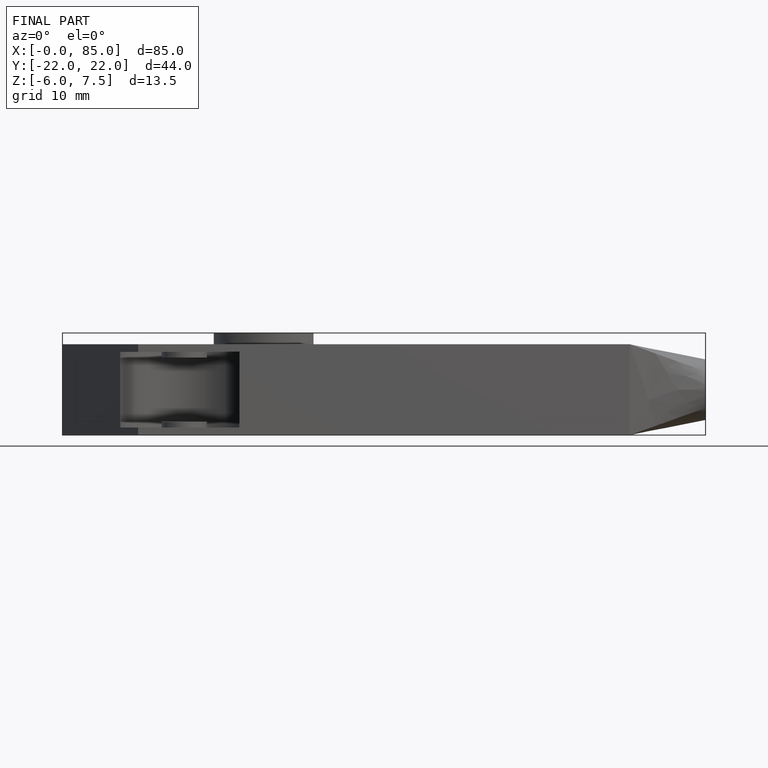
[diagram: finished part — front view with bounding-box wireframe]
